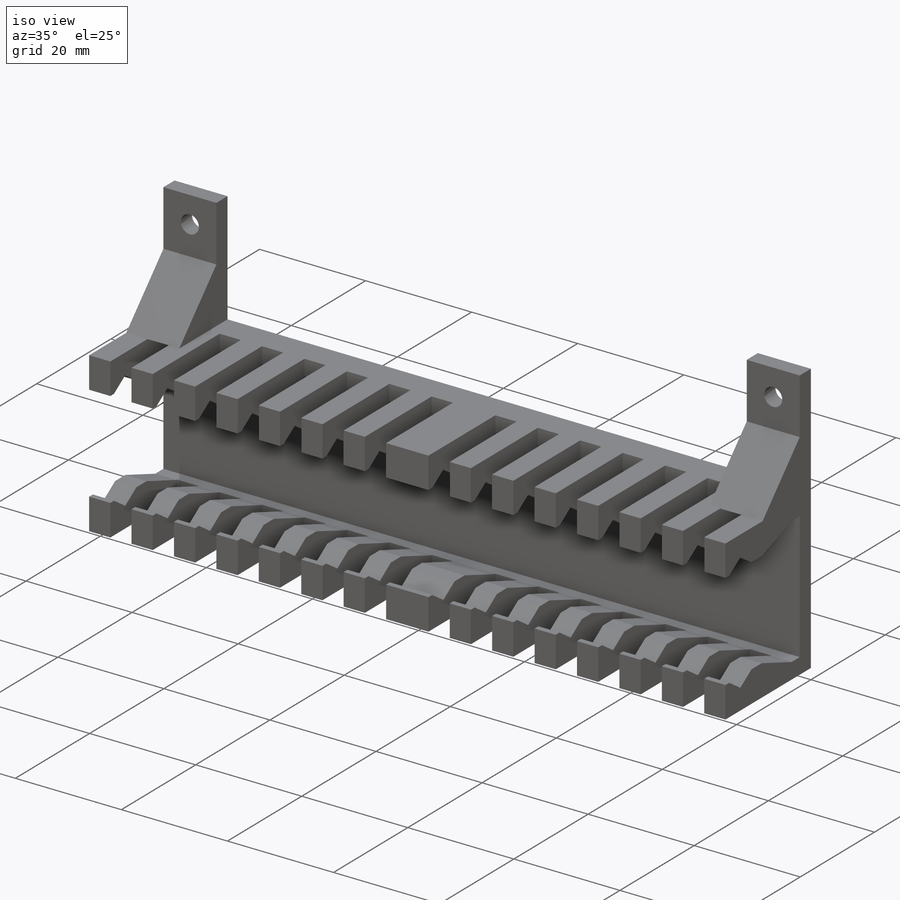
[diagram: iso view]
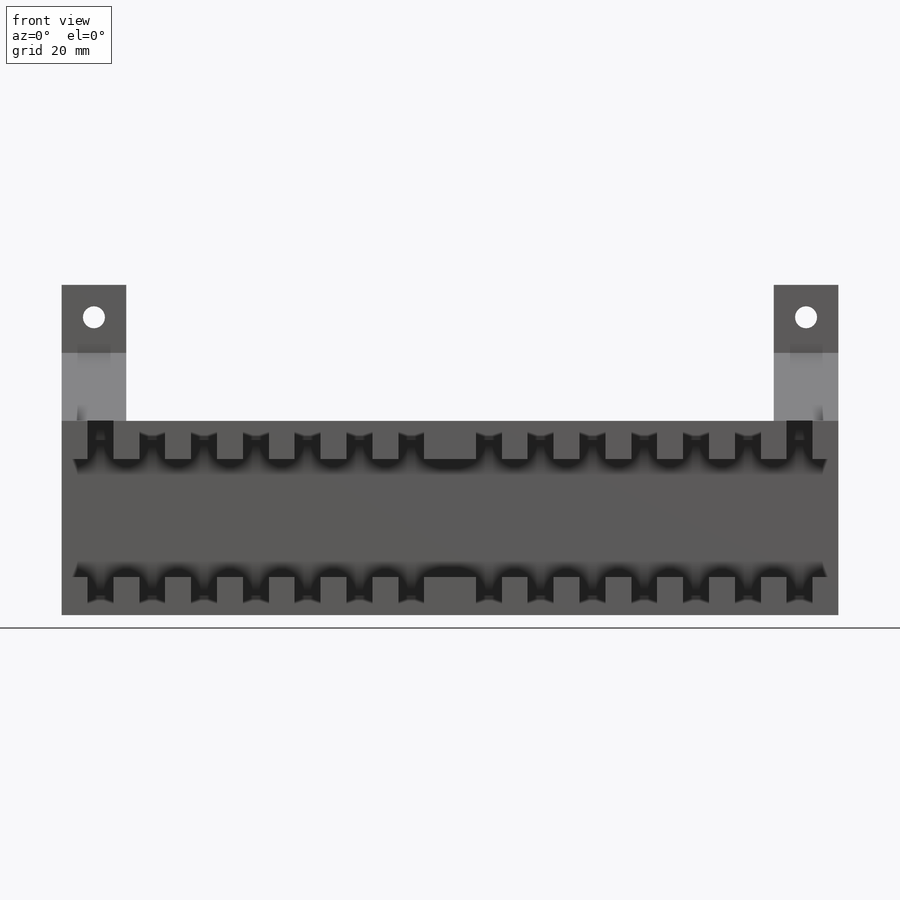
[diagram: front view]
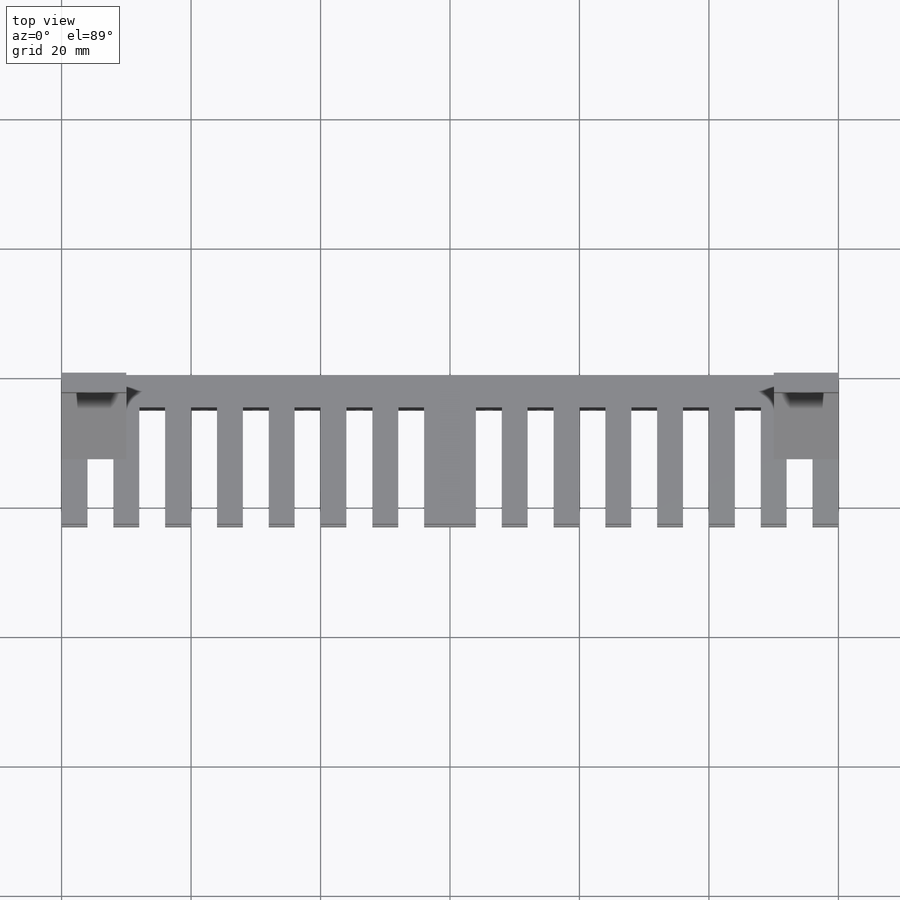
[diagram: top view]
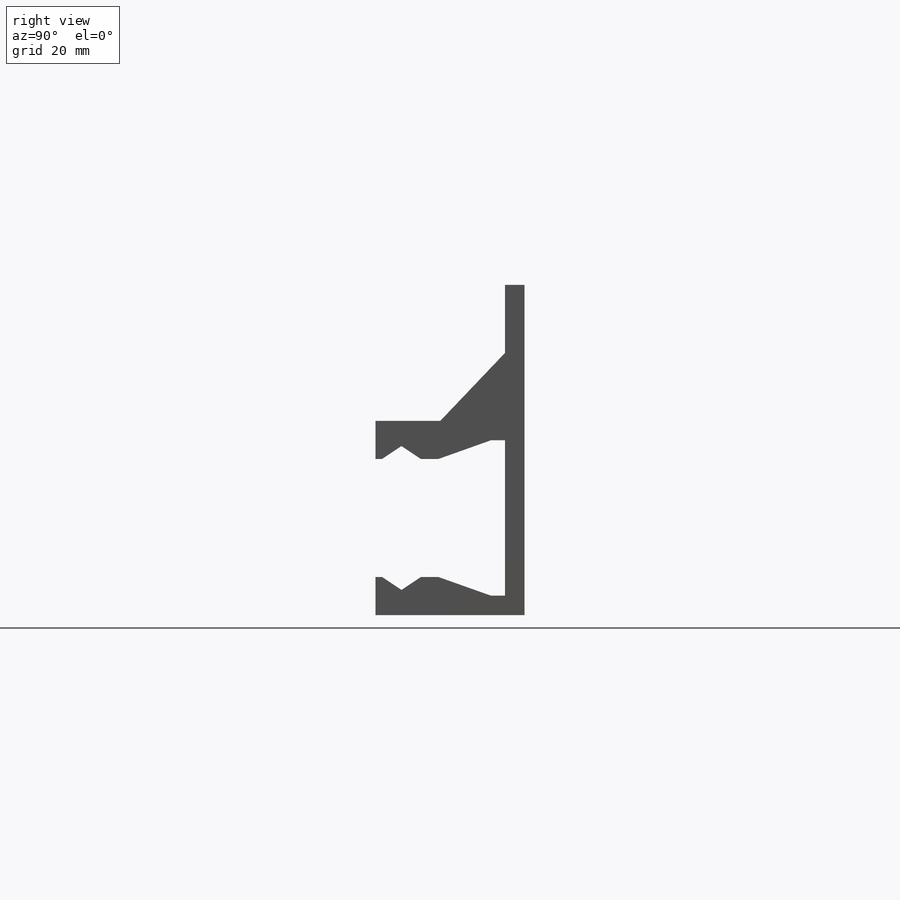
[diagram: right view]
SOLIDWORKS PART (.sldprt)
format: sldprt  version: not decoded by parser v0  size: 646,144 bytes
history: native  units: mm
features: sketch x7, extrude x5, plane x3, cut_extrude x2, material x1 (+10 scaffold rows collapsed)
feature tree (28):
  scaffold x10  (default folders/planes/origin — collapsed)
  material  "Matériau <non spécifié>"
  plane  "Plan de face"
  plane  "Plan de dessus"
  plane  "Plan de droite"
  sketch  "Esquisse1"  dims[c1.D3=3.4mm c1.D4=3.4mm c1.D1=120.0mm c1.D2=30.0mm c2.D3=55.0mm c2.D4=16.0mm c2.D5=10.0mm c2.D6=21.0mm]
  extrude  "Boss.-Extru.1"  Depth=3mm
  sketch  "Esquisse2"  dims[D1=3.0mm D2=120.0mm]
  extrude  "Boss.-Extru.2"  Depth=20mm
  sketch  "Esquisse5"
  extrude  "Boss.-Extru.3"  Depth=120mm
  sketch  "Esquisse6"  dims[c1.D1=3.0mm c1.D2=3.0mm c2.D1=1.0mm c2.D2=2.0mm c2.D3=3.0mm c2.D4=3.0mm]
  cut_extrude  "Enlèv. mat.-Extru.1"  Depth=120mm
  sketch  "Esquisse7"  dims[c1.D1=18.0mm c1.D2=4.0mm c2.D1=18.0mm c2.D2=4.0mm c2.D3=4.0mm c2.D4=7.0]
  cut_extrude  "Enlèv. mat.-Extru.2"  Depth=34mm
  sketch  "Esquisse8"
  extrude  "Boss.-Extru.4"  Depth=10mm
  sketch  "Esquisse9"
  extrude  "Boss.-Extru.5"  Depth=10mm
decode coverage: 11 of 14 modeling features carry decoded parameters
note: suppression state not decoded; provenance and decode notes live in map.json
